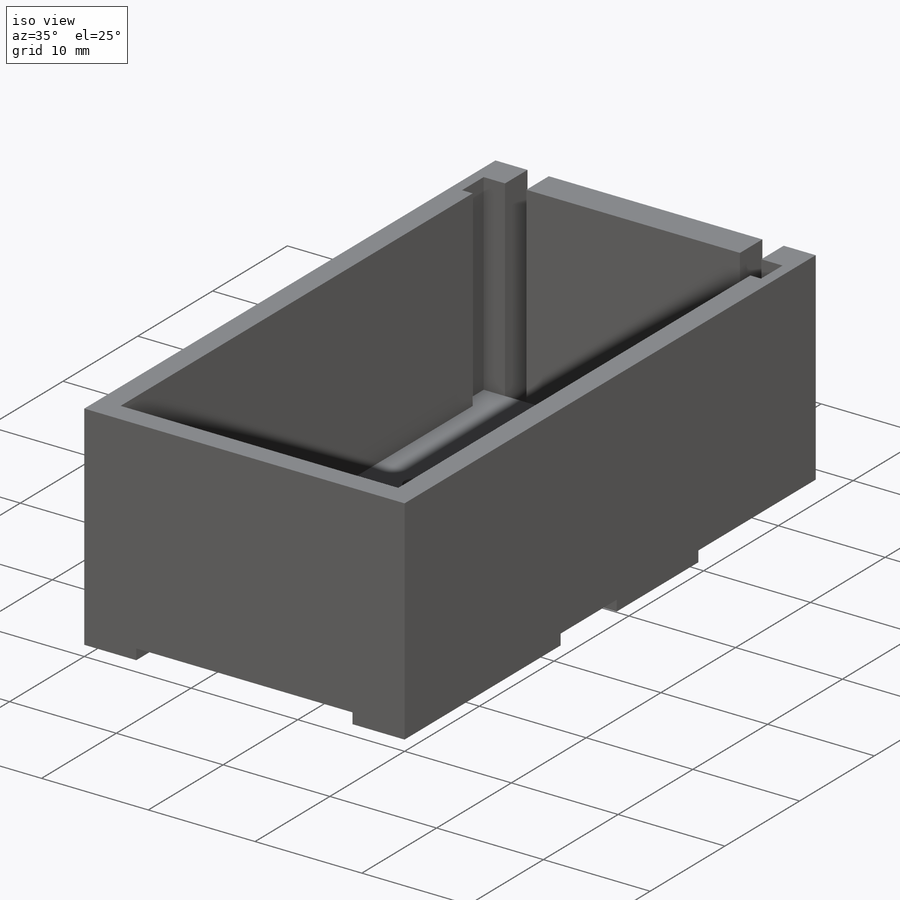
[diagram: iso view]
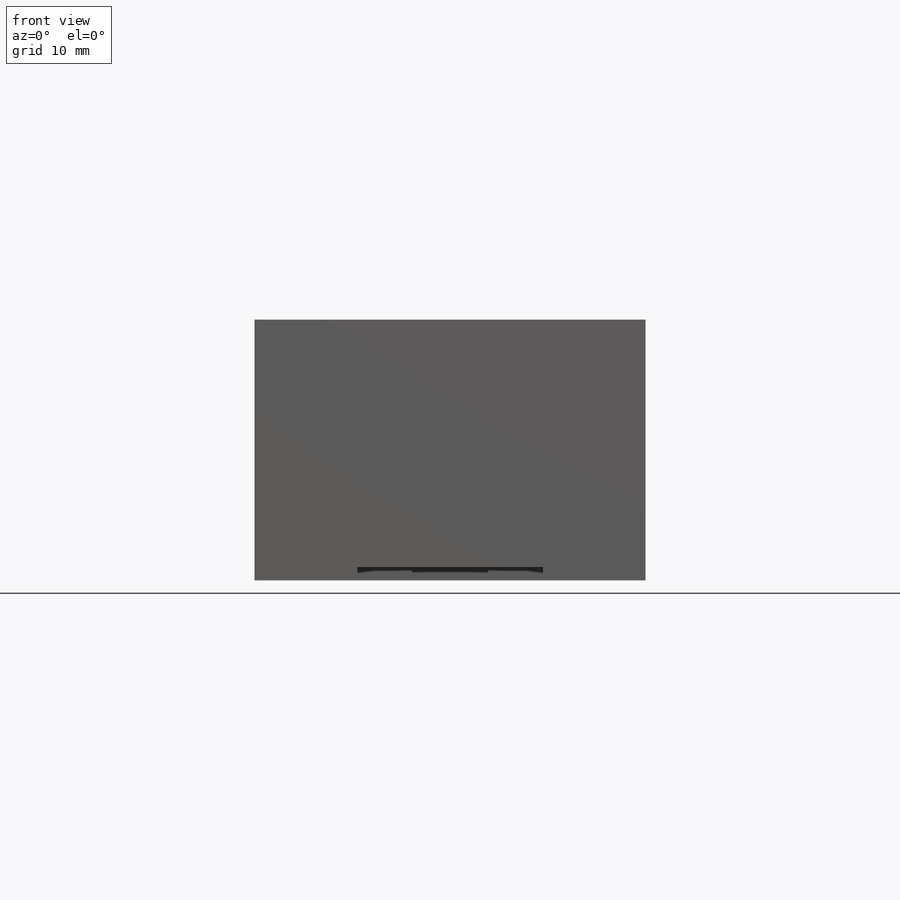
[diagram: front view]
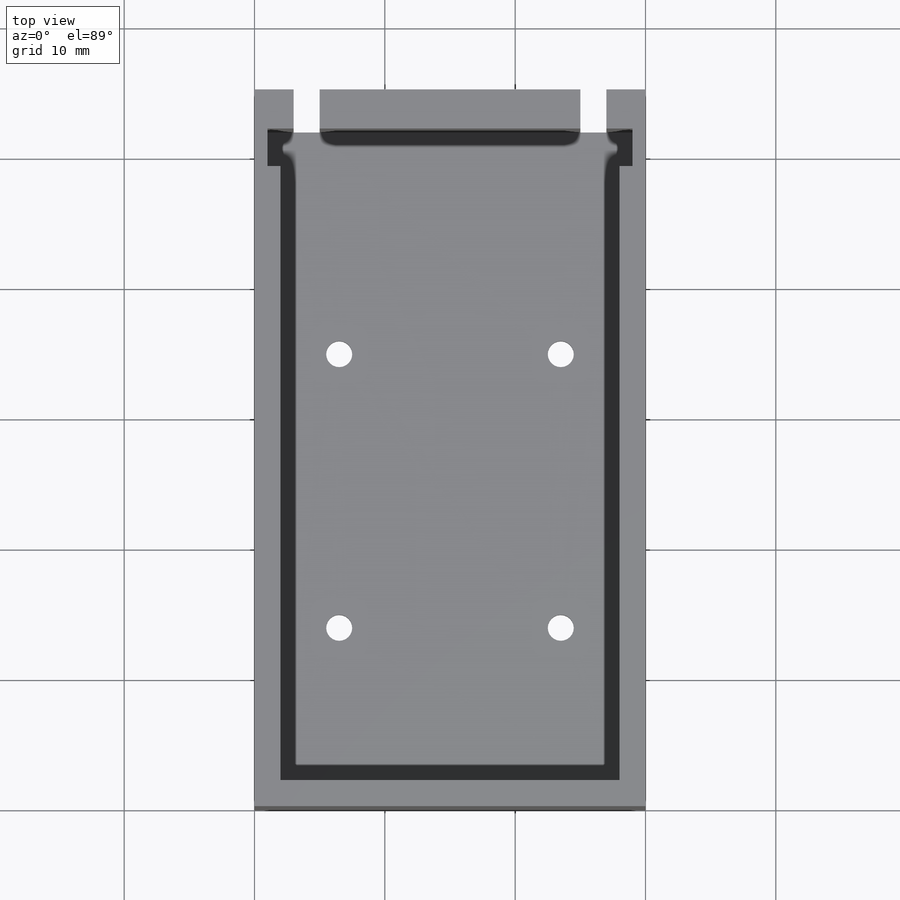
[diagram: top view]
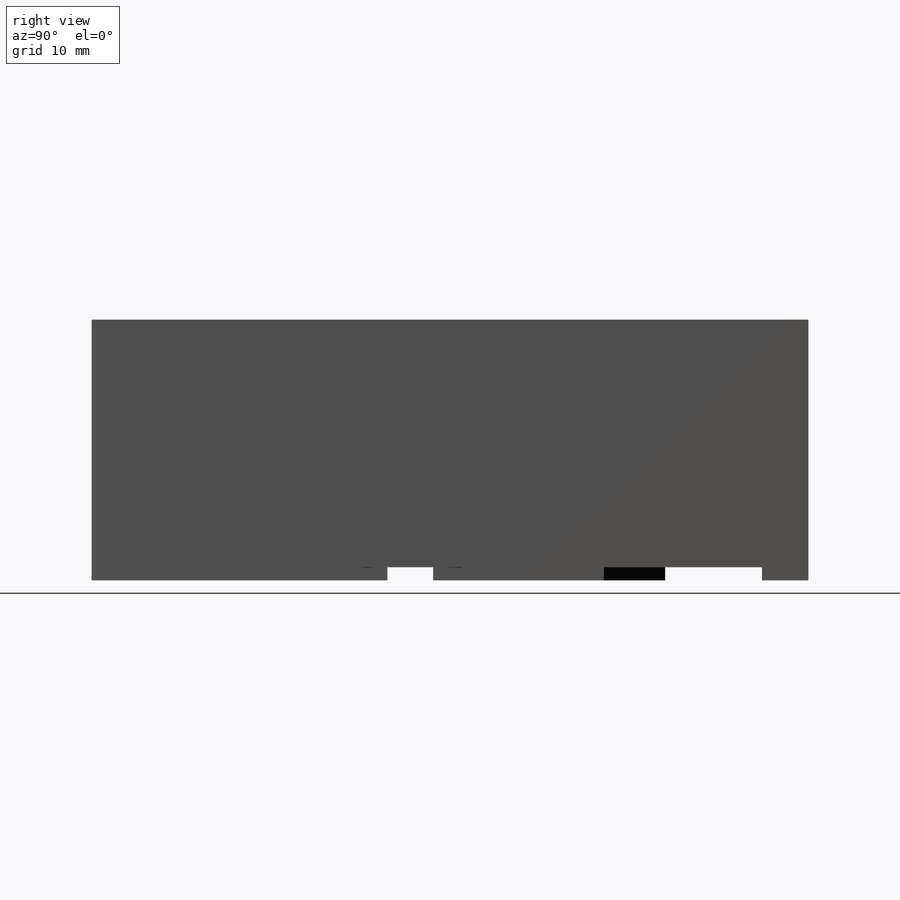
[diagram: right view]
SOLIDWORKS PART (.sldprt)
format: sldprt  version: not decoded by parser v0  size: 299,520 bytes
history: native  units: mm
features: sketch x6, cut_extrude x5, material x1, extrude x1 (+16 scaffold rows collapsed)
feature tree (29):
  scaffold x16  (default folders/planes/origin — collapsed)
  material  "CA"
  sketch  "Sketch1"  dims[D1=30.0mm D2=55.0mm]
  extrude  "Boss-Extrude1"  Depth=20mm
  sketch  "Sketch2"  dims[D1=2.0mm D2=2.0mm D3=3.0mm D4=1.0mm]
  cut_extrude  "Cut-Extrude1"  Depth=18mm
  sketch  "Sketch3"  dims[D1=2.0mm D2=3.0mm]
  cut_extrude  "Cut-Extrude2"  [1 undecoded]
  sketch  "Sketch4"  dims[D1=2.0mm D2=2.0mm D3=1.0mm D4=2.0mm]
  cut_extrude  "Cut-Extrude3"  Depth=1mm
  sketch  "Sketch5"  dims[c1.D1=2.0mm c1.D3=2.0mm c1.D2=8.5mm c2.D3=14.0mm c2.D4=2.0 c2.D5=2.0]
  cut_extrude  "Cut-Extrude4"  [1 undecoded]
  sketch  "Sketch6"
  cut_extrude  "Cut-Extrude5"  Depth=1mm
decode coverage: 9 of 12 modeling features carry decoded parameters
note: 2 parameter values undecoded
note: suppression state not decoded; provenance and decode notes live in map.json
